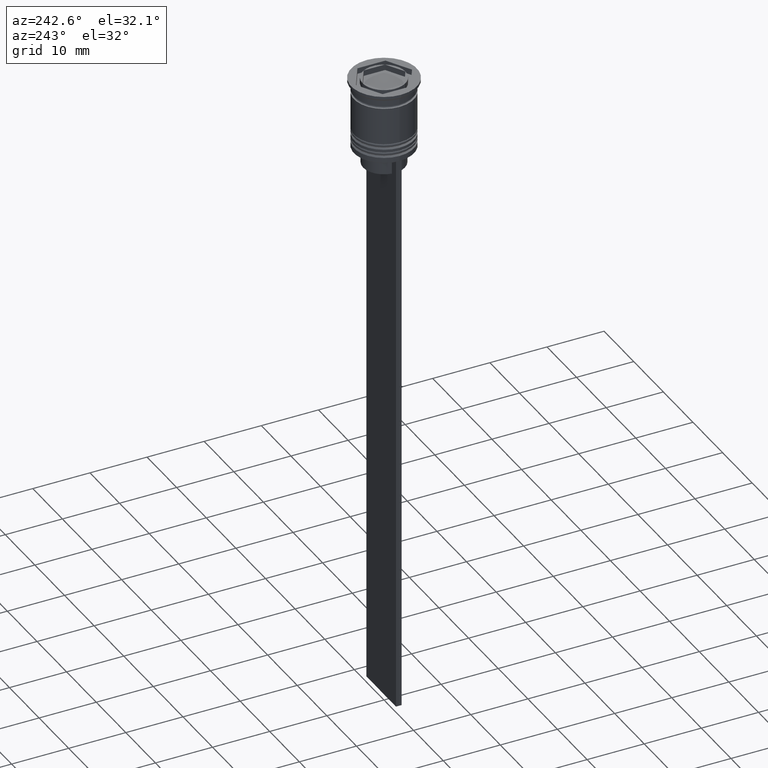
[diagram: clean part render]
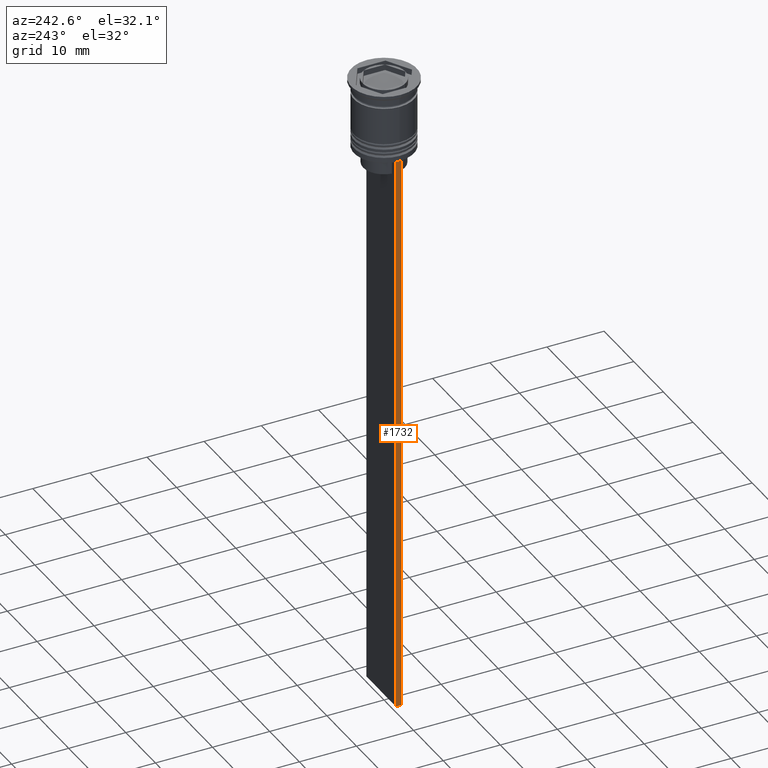
[diagram: same view with one face highlighted and labeled with its STEP entity id]
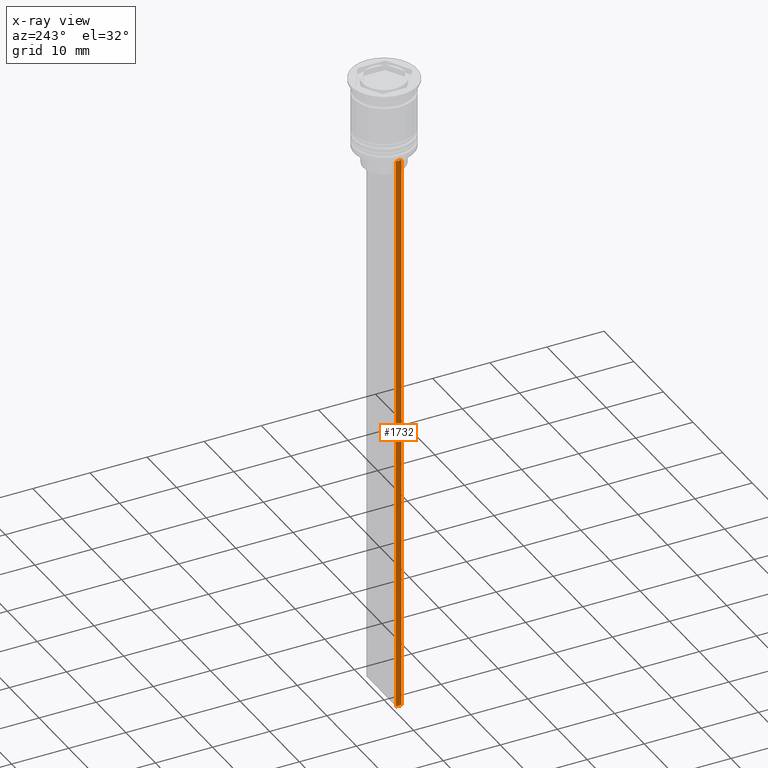
[diagram: x-ray of the same camera — body ghosted, the highlighted face saturated]
A machine part, auxiliary view. The second image highlights one B-rep face of the part: STEP entity #1732.
The next image is the same camera in x-ray: the body ghosted, the highlighted face saturated — about 0% of this face is hidden behind the body in this view.
In plain terms, the highlighted planar face has unit normal (-1, 0, 0).
Its self-contained STEP definition (entity closure, byte-faithful):
#34 = LINE ( 'NONE', #748, #1238 ) ;
#95 = DIRECTION ( 'NONE',  ( 0.000000000000000000, 1.000000000000000000, 0.000000000000000000 ) ) ;
#131 = PLANE ( 'NONE',  #1626 ) ;
#152 = EDGE_LOOP ( 'NONE', ( #1022, #431, #1276, #1494 ) ) ;
#172 = CARTESIAN_POINT ( 'NONE',  ( -4.999999999999999112, 0.4999999999999991673, -112.5000000000000000 ) ) ;
#346 = VERTEX_POINT ( 'NONE', #594 ) ;
#431 = ORIENTED_EDGE ( 'NONE', *, *, #1409, .T. ) ;
#594 = CARTESIAN_POINT ( 'NONE',  ( -4.999999999999999112, -0.5000000000000008882, -112.5000000000000000 ) ) ;
#688 = DIRECTION ( 'NONE',  ( -1.000000000000000000, 0.000000000000000000, 0.000000000000000000 ) ) ;
#746 = VECTOR ( 'NONE', #864, 1000.000000000000000 ) ;
#748 = CARTESIAN_POINT ( 'NONE',  ( -4.999999999999999112, -0.5000000000000008882, -2.450124378879110054 ) ) ;
#768 = LINE ( 'NONE', #1455, #1773 ) ;
#778 = VECTOR ( 'NONE', #95, 1000.000000000000000 ) ;
#845 = CARTESIAN_POINT ( 'NONE',  ( -4.999999999999999112, -0.5000000000000008882, -2.450124378879110054 ) ) ;
#864 = DIRECTION ( 'NONE',  ( 0.000000000000000000, -1.000000000000000000, 0.000000000000000000 ) ) ;
#901 = VERTEX_POINT ( 'NONE', #172 ) ;
#957 = CARTESIAN_POINT ( 'NONE',  ( -4.999999999999999112, -0.5000000000000008882, -12.50000000000000000 ) ) ;
#1022 = ORIENTED_EDGE ( 'NONE', *, *, #1269, .F. ) ;
#1026 = FACE_OUTER_BOUND ( 'NONE', #152, .T. ) ;
#1085 = VERTEX_POINT ( 'NONE', #1945 ) ;
#1100 = EDGE_CURVE ( 'NONE', #346, #901, #1742, .T. ) ;
#1238 = VECTOR ( 'NONE', #1480, 1000.000000000000000 ) ;
#1269 = EDGE_CURVE ( 'NONE', #1085, #2206, #1634, .T. ) ;
#1276 = ORIENTED_EDGE ( 'NONE', *, *, #1100, .F. ) ;
#1409 = EDGE_CURVE ( 'NONE', #1085, #901, #768, .T. ) ;
#1415 = DIRECTION ( 'NONE',  ( 0.000000000000000000, 0.000000000000000000, 1.000000000000000000 ) ) ;
#1441 = EDGE_CURVE ( 'NONE', #2206, #346, #34, .T. ) ;
#1455 = CARTESIAN_POINT ( 'NONE',  ( -4.999999999999999112, 0.4999999999999991673, -2.450124378879110054 ) ) ;
#1480 = DIRECTION ( 'NONE',  ( 0.000000000000000000, 0.000000000000000000, -1.000000000000000000 ) ) ;
#1494 = ORIENTED_EDGE ( 'NONE', *, *, #1441, .F. ) ;
#1626 = AXIS2_PLACEMENT_3D ( 'NONE', #845, #688, #1415 ) ;
#1634 = LINE ( 'NONE', #2139, #746 ) ;
#1718 = CARTESIAN_POINT ( 'NONE',  ( -4.999999999999999112, -0.5000000000000008882, -112.5000000000000000 ) ) ;
#1732 = ADVANCED_FACE ( 'NONE', ( #1026 ), #131, .T. ) ;
#1742 = LINE ( 'NONE', #1718, #778 ) ;
#1773 = VECTOR ( 'NONE', #1845, 1000.000000000000000 ) ;
#1845 = DIRECTION ( 'NONE',  ( 0.000000000000000000, 0.000000000000000000, -1.000000000000000000 ) ) ;
#1945 = CARTESIAN_POINT ( 'NONE',  ( -4.999999999999999112, 0.4999999999999993339, -12.50000000000000000 ) ) ;
#2139 = CARTESIAN_POINT ( 'NONE',  ( -4.999999999999999112, -0.5000000000000008882, -12.50000000000000000 ) ) ;
#2206 = VERTEX_POINT ( 'NONE', #957 ) ;